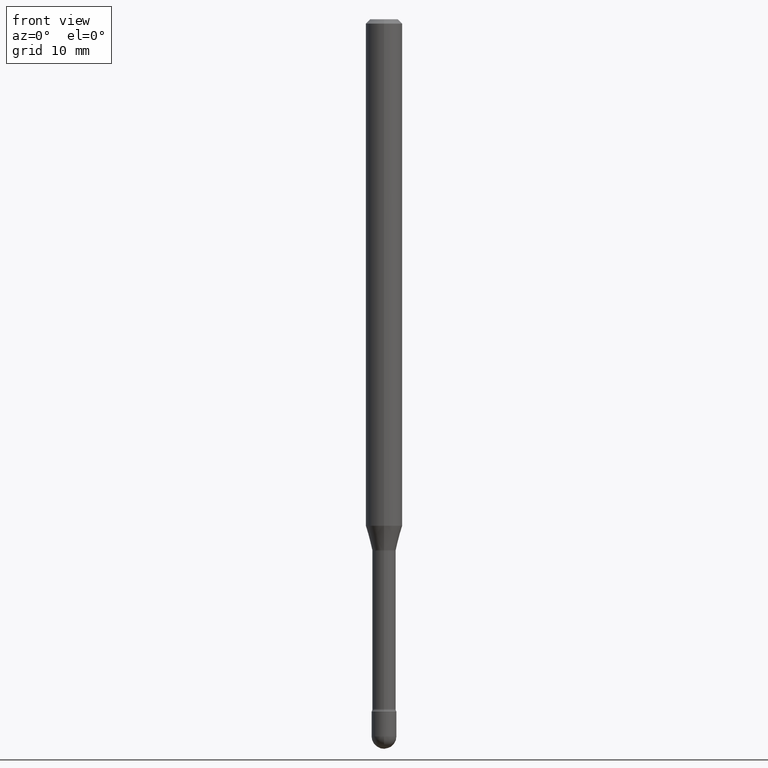
[diagram: clean part render]
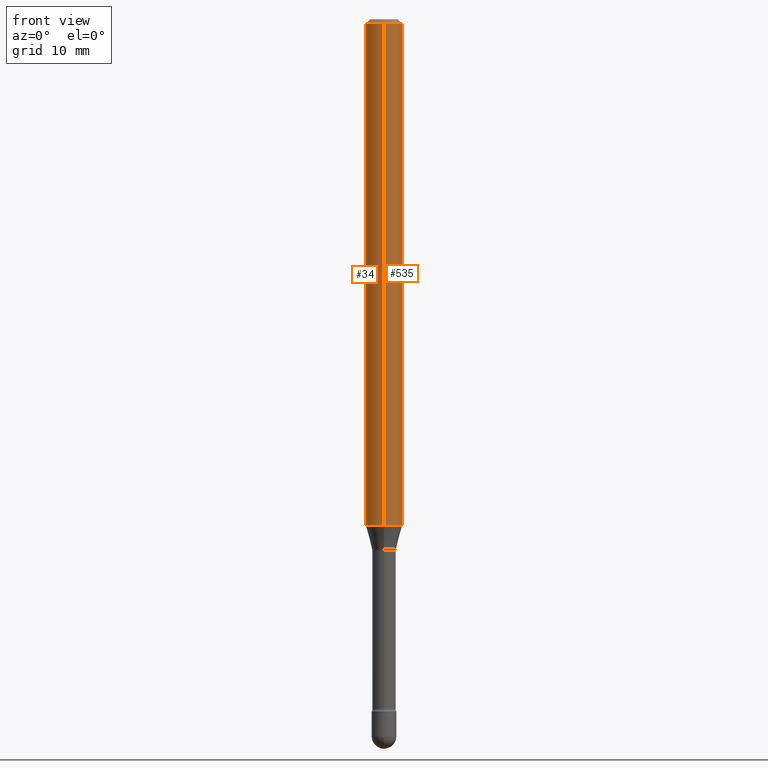
[diagram: same view with one multi-face feature highlighted, each face labeled with its STEP entity id]
A machine part, front view. The highlighted faces form ONE feature: a constant-radius fillet chain: 2 tangent blend faces with common blend radius 1.5875 mm. The faces share edges in the B-rep.
Their STEP definitions:
[1] entity #535 (Cylinder):
#11 = VECTOR ( 'NONE', #263, 39.37007874015748143 ) ;
#33 = CARTESIAN_POINT ( 'NONE',  ( 4.245010590049123463E-29, -6.060571327700693261E-15, -1.735842254289322373 ) ) ;
#36 = CARTESIAN_POINT ( 'NONE',  ( -1.169113584055446105E-44, 1.669184350826100908E-30, 4.780733988912460139E-16 ) ) ;
#66 = ORIENTED_EDGE ( 'NONE', *, *, #208, .F. ) ;
#75 = EDGE_CURVE ( 'NONE', #174, #450, #203, .T. ) ;
#85 = CARTESIAN_POINT ( 'NONE',  ( -4.364351673553916201E-16, -0.06250000000000000000, 6.962877596981117363E-16 ) ) ;
#87 = VERTEX_POINT ( 'NONE', #550 ) ;
#105 = DIRECTION ( 'NONE',  ( -6.982962677686265922E-15, -1.000000000000000000, 3.483106191921935554E-15 ) ) ;
#128 = ORIENTED_EDGE ( 'NONE', *, *, #525, .T. ) ;
#156 = AXIS2_PLACEMENT_3D ( 'NONE', #36, #166, #297 ) ;
#166 = DIRECTION ( 'NONE',  ( -2.445504814483899766E-29, 3.491429772909851557E-15, 1.000000000000000000 ) ) ;
#172 = LINE ( 'NONE', #343, #11 ) ;
#174 = VERTEX_POINT ( 'NONE', #252 ) ;
#189 = ORIENTED_EDGE ( 'NONE', *, *, #75, .T. ) ;
#200 = DIRECTION ( 'NONE',  ( -2.445504814483899766E-29, 3.491429772909851557E-15, 1.000000000000000000 ) ) ;
#203 = CIRCLE ( 'NONE', #526, 0.06250000000000000000 ) ;
#208 = EDGE_CURVE ( 'NONE', #174, #543, #466, .T. ) ;
#241 = EDGE_CURVE ( 'NONE', #543, #87, #554, .T. ) ;
#252 = CARTESIAN_POINT ( 'NONE',  ( -4.364351673553489723E-16, -0.06250000000000602296, -1.735842254289321929 ) ) ;
#262 = DIRECTION ( 'NONE',  ( -2.445504814483899766E-29, 3.491429772909851557E-15, 1.000000000000000000 ) ) ;
#263 = DIRECTION ( 'NONE',  ( -2.445504814483899766E-29, 3.491429772909851557E-15, 1.000000000000000000 ) ) ;
#270 = EDGE_LOOP ( 'NONE', ( #189, #128, #451, #66 ) ) ;
#293 = CYLINDRICAL_SURFACE ( 'NONE', #156, 0.06250000000000000000 ) ;
#297 = DIRECTION ( 'NONE',  ( -6.982962677686265922E-15, -1.000000000000000000, 3.491429772909850768E-15 ) ) ;
#313 = CARTESIAN_POINT ( 'NONE',  ( 3.668257221725869898E-31, -5.237144659364806746E-17, -0.01500000000000008271 ) ) ;
#333 = CARTESIAN_POINT ( 'NONE',  ( -4.364351673553912750E-16, -0.06250000000000005551, -0.01499999999999986587 ) ) ;
#340 = AXIS2_PLACEMENT_3D ( 'NONE', #313, #262, #105 ) ;
#343 = CARTESIAN_POINT ( 'NONE',  ( 4.440892098500625669E-16, 0.06250000000000000000, 2.598590380843803409E-16 ) ) ;
#352 = DIRECTION ( 'NONE',  ( -2.445504814483899766E-29, 3.491429772909851557E-15, 1.000000000000000000 ) ) ;
#372 = DIRECTION ( 'NONE',  ( -6.982962677686265922E-15, -1.000000000000000000, 4.370956789862821150E-15 ) ) ;
#401 = CARTESIAN_POINT ( 'NONE',  ( 4.440892098501052147E-16, 0.06249999999999397010, -1.735842254289322595 ) ) ;
#450 = VERTEX_POINT ( 'NONE', #401 ) ;
#451 = ORIENTED_EDGE ( 'NONE', *, *, #241, .F. ) ;
#466 = LINE ( 'NONE', #85, #472 ) ;
#472 = VECTOR ( 'NONE', #352, 39.37007874015748143 ) ;
#522 = FACE_OUTER_BOUND ( 'NONE', #270, .T. ) ;
#525 = EDGE_CURVE ( 'NONE', #450, #87, #172, .T. ) ;
#526 = AXIS2_PLACEMENT_3D ( 'NONE', #33, #200, #372 ) ;
#535 = ADVANCED_FACE ( 'NONE', ( #522 ), #293, .T. ) ;
#543 = VERTEX_POINT ( 'NONE', #333 ) ;
#550 = CARTESIAN_POINT ( 'NONE',  ( 4.440892098501054119E-16, 0.06249999999999995837, -0.01500000000000030129 ) ) ;
#554 = CIRCLE ( 'NONE', #340, 0.06250000000000000000 ) ;
[2] entity #34 (Cylinder):
#11 = VECTOR ( 'NONE', #263, 39.37007874015748143 ) ;
#29 = EDGE_CURVE ( 'NONE', #450, #174, #82, .T. ) ;
#34 = ADVANCED_FACE ( 'NONE', ( #237 ), #154, .T. ) ;
#38 = AXIS2_PLACEMENT_3D ( 'NONE', #382, #164, #129 ) ;
#82 = CIRCLE ( 'NONE', #280, 0.06250000000000000000 ) ;
#85 = CARTESIAN_POINT ( 'NONE',  ( -4.364351673553916201E-16, -0.06250000000000000000, 6.962877596981117363E-16 ) ) ;
#87 = VERTEX_POINT ( 'NONE', #550 ) ;
#95 = ORIENTED_EDGE ( 'NONE', *, *, #525, .F. ) ;
#109 = DIRECTION ( 'NONE',  ( -2.445504814483899766E-29, 3.491429772909851557E-15, 1.000000000000000000 ) ) ;
#129 = DIRECTION ( 'NONE',  ( -6.982962677686265922E-15, -1.000000000000000000, 3.483106191921935554E-15 ) ) ;
#147 = ORIENTED_EDGE ( 'NONE', *, *, #506, .F. ) ;
#154 = CYLINDRICAL_SURFACE ( 'NONE', #505, 0.06250000000000000000 ) ;
#164 = DIRECTION ( 'NONE',  ( -2.445504814483899766E-29, 3.491429772909851557E-15, 1.000000000000000000 ) ) ;
#172 = LINE ( 'NONE', #343, #11 ) ;
#174 = VERTEX_POINT ( 'NONE', #252 ) ;
#208 = EDGE_CURVE ( 'NONE', #174, #543, #466, .T. ) ;
#237 = FACE_OUTER_BOUND ( 'NONE', #349, .T. ) ;
#252 = CARTESIAN_POINT ( 'NONE',  ( -4.364351673553489723E-16, -0.06250000000000602296, -1.735842254289321929 ) ) ;
#254 = CIRCLE ( 'NONE', #38, 0.06250000000000000000 ) ;
#263 = DIRECTION ( 'NONE',  ( -2.445504814483899766E-29, 3.491429772909851557E-15, 1.000000000000000000 ) ) ;
#274 = ORIENTED_EDGE ( 'NONE', *, *, #208, .T. ) ;
#280 = AXIS2_PLACEMENT_3D ( 'NONE', #323, #456, #409 ) ;
#283 = CARTESIAN_POINT ( 'NONE',  ( -1.169113584055446105E-44, 1.669184350826100908E-30, 4.780733988912460139E-16 ) ) ;
#323 = CARTESIAN_POINT ( 'NONE',  ( 4.245010590049123463E-29, -6.060571327700693261E-15, -1.735842254289322373 ) ) ;
#333 = CARTESIAN_POINT ( 'NONE',  ( -4.364351673553912750E-16, -0.06250000000000005551, -0.01499999999999986587 ) ) ;
#343 = CARTESIAN_POINT ( 'NONE',  ( 4.440892098500625669E-16, 0.06250000000000000000, 2.598590380843803409E-16 ) ) ;
#349 = EDGE_LOOP ( 'NONE', ( #95, #445, #274, #147 ) ) ;
#352 = DIRECTION ( 'NONE',  ( -2.445504814483899766E-29, 3.491429772909851557E-15, 1.000000000000000000 ) ) ;
#368 = DIRECTION ( 'NONE',  ( -6.982962677686265922E-15, -1.000000000000000000, 3.491429772909850768E-15 ) ) ;
#382 = CARTESIAN_POINT ( 'NONE',  ( 3.668257221725869898E-31, -5.237144659364806746E-17, -0.01500000000000008271 ) ) ;
#401 = CARTESIAN_POINT ( 'NONE',  ( 4.440892098501052147E-16, 0.06249999999999397010, -1.735842254289322595 ) ) ;
#409 = DIRECTION ( 'NONE',  ( -6.982962677686265922E-15, -1.000000000000000000, 4.370956789862821150E-15 ) ) ;
#445 = ORIENTED_EDGE ( 'NONE', *, *, #29, .T. ) ;
#450 = VERTEX_POINT ( 'NONE', #401 ) ;
#456 = DIRECTION ( 'NONE',  ( -2.445504814483899766E-29, 3.491429772909851557E-15, 1.000000000000000000 ) ) ;
#466 = LINE ( 'NONE', #85, #472 ) ;
#472 = VECTOR ( 'NONE', #352, 39.37007874015748143 ) ;
#505 = AXIS2_PLACEMENT_3D ( 'NONE', #283, #109, #368 ) ;
#506 = EDGE_CURVE ( 'NONE', #87, #543, #254, .T. ) ;
#525 = EDGE_CURVE ( 'NONE', #450, #87, #172, .T. ) ;
#543 = VERTEX_POINT ( 'NONE', #333 ) ;
#550 = CARTESIAN_POINT ( 'NONE',  ( 4.440892098501054119E-16, 0.06249999999999995837, -0.01500000000000030129 ) ) ;